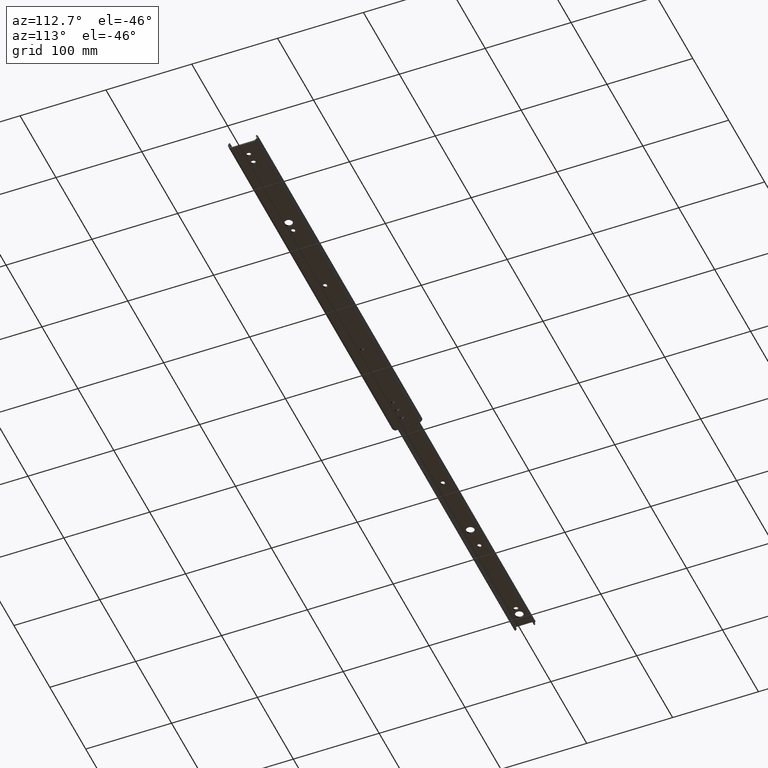
[diagram: clean part render]
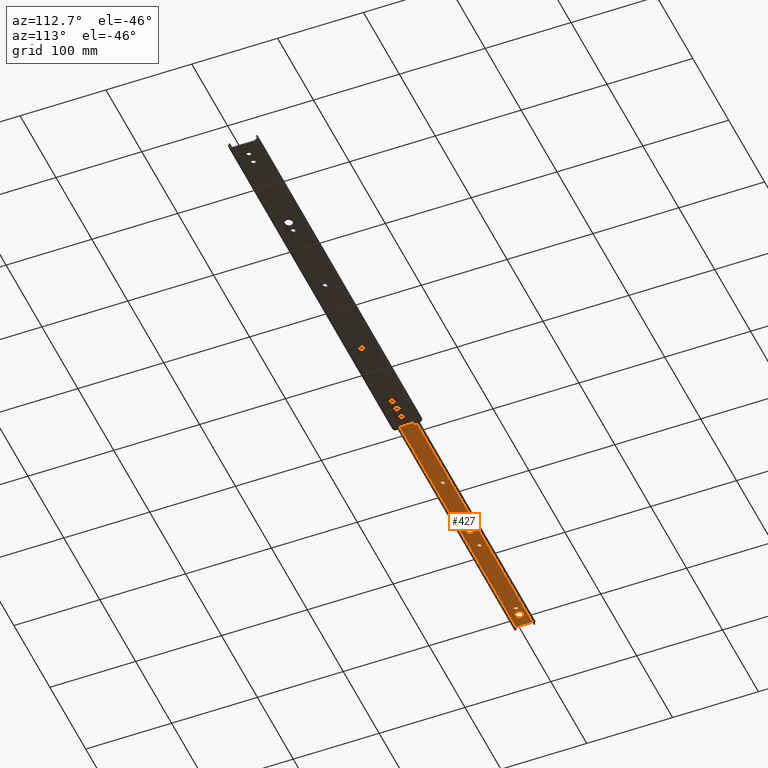
[diagram: same view with one face highlighted and labeled with its STEP entity id]
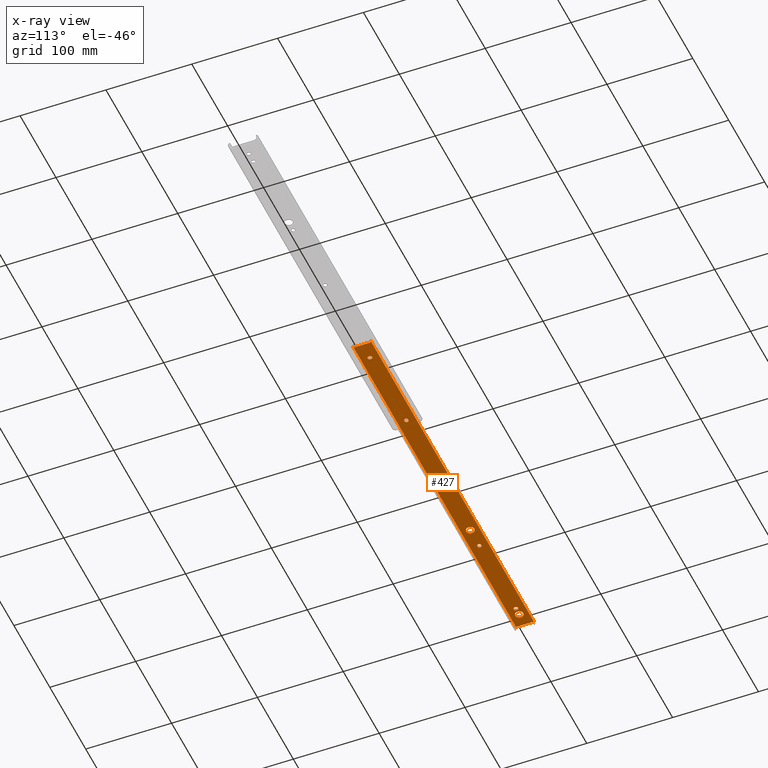
[diagram: x-ray of the same camera — body ghosted, the highlighted face saturated]
A machine part, auxiliary view. The second image highlights one B-rep face of the part: STEP entity #427.
The next image is the same camera in x-ray: the body ghosted, the highlighted face saturated — about 0% of this face is hidden behind the body in this view.
In plain terms, the highlighted planar face has unit normal (0, 0, 1).
Its self-contained STEP definition (entity closure, byte-faithful):
#2 = ORIENTED_EDGE ( 'NONE', *, *, #2224, .T. ) ;
#27 = CARTESIAN_POINT ( 'NONE',  ( 229.0000000000000000, 2.412649031546223800E-015, -1.599999999999893100 ) ) ;
#40 = ORIENTED_EDGE ( 'NONE', *, *, #491, .T. ) ;
#45 = ORIENTED_EDGE ( 'NONE', *, *, #412, .T. ) ;
#66 = CIRCLE ( 'NONE', #848, 2.249999999999974200 ) ;
#86 = DIRECTION ( 'NONE',  ( 1.000000000000000000, 0.0000000000000000000, 0.0000000000000000000 ) ) ;
#122 = VECTOR ( 'NONE', #2764, 1000.000000000000000 ) ;
#137 = DIRECTION ( 'NONE',  ( 0.0000000000000000000, 0.0000000000000000000, 1.000000000000000000 ) ) ;
#140 = CARTESIAN_POINT ( 'NONE',  ( 454.1999999999999900, 0.0000000000000000000, -1.599999999999893100 ) ) ;
#143 = CARTESIAN_POINT ( 'NONE',  ( 329.7999999999999500, -2.250000000000045700, -1.599999999999894800 ) ) ;
#168 = VERTEX_POINT ( 'NONE', #499 ) ;
#181 = EDGE_CURVE ( 'NONE', #168, #3920, #3367, .T. ) ;
#255 = EDGE_CURVE ( 'NONE', #3732, #3101, #2323, .T. ) ;
#258 = VERTEX_POINT ( 'NONE', #438 ) ;
#269 = CARTESIAN_POINT ( 'NONE',  ( 454.1999999999999900, 9.799999999999993600, -1.599999999999893100 ) ) ;
#280 = CARTESIAN_POINT ( 'NONE',  ( 147.6500000000000100, 5.817072295949932400E-016, -1.599999999999893100 ) ) ;
#283 = CIRCLE ( 'NONE', #1130, 2.250000000000001800 ) ;
#295 = CARTESIAN_POINT ( 'NONE',  ( 231.2500000000000000, 2.412649031546223800E-015, -1.599999999999893100 ) ) ;
#304 = ORIENTED_EDGE ( 'NONE', *, *, #3147, .F. ) ;
#309 = EDGE_CURVE ( 'NONE', #2051, #1572, #512, .T. ) ;
#321 = LINE ( 'NONE', #1244, #2052 ) ;
#322 = ORIENTED_EDGE ( 'NONE', *, *, #2889, .T. ) ;
#333 = CIRCLE ( 'NONE', #3247, 2.250000000000001800 ) ;
#355 = DIRECTION ( 'NONE',  ( 1.000000000000000000, 0.0000000000000000000, 0.0000000000000000000 ) ) ;
#364 = DIRECTION ( 'NONE',  ( 0.0000000000000000000, 0.0000000000000000000, 1.000000000000000000 ) ) ;
#383 = CARTESIAN_POINT ( 'NONE',  ( 228.1999999999999900, 2.265691415648536800E-015, -1.599999999999893100 ) ) ;
#387 = CARTESIAN_POINT ( 'NONE',  ( 228.1999999999999900, -2.250000000000030600, -1.599999999999894800 ) ) ;
#391 = CARTESIAN_POINT ( 'NONE',  ( 27.65000000000000200, -0.3999999999999999700, -1.599999999999894800 ) ) ;
#393 = CARTESIAN_POINT ( 'NONE',  ( 454.1999999999999900, 0.0000000000000000000, -1.599999999999893100 ) ) ;
#397 = DIRECTION ( 'NONE',  ( 0.0000000000000000000, 1.000000000000000000, 0.0000000000000000000 ) ) ;
#403 = CARTESIAN_POINT ( 'NONE',  ( 454.1999999999999900, 2.249999999999993800, -1.599999999999893100 ) ) ;
#408 = CARTESIAN_POINT ( 'NONE',  ( 452.6000000000000200, 8.199999999999999300, -1.599999999999893100 ) ) ;
#412 = EDGE_CURVE ( 'NONE', #3101, #1577, #958, .T. ) ;
#427 = ADVANCED_FACE ( 'NONE', ( #1822, #865, #4151, #1718, #3316, #3416, #2476, #1606 ), #461, .F. ) ;
#438 = CARTESIAN_POINT ( 'NONE',  ( 434.0499999999999500, 0.4000000000000183400, -1.599999999999894800 ) ) ;
#446 = CIRCLE ( 'NONE', #1529, 4.750000000000004400 ) ;
#461 = PLANE ( 'NONE',  #605 ) ;
#462 = AXIS2_PLACEMENT_3D ( 'NONE', #3819, #2170, #1817 ) ;
#468 = VERTEX_POINT ( 'NONE', #2923 ) ;
#491 = EDGE_CURVE ( 'NONE', #714, #2136, #2378, .T. ) ;
#499 = CARTESIAN_POINT ( 'NONE',  ( 20.65000000000000200, 0.0000000000000000000, -1.599999999999893100 ) ) ;
#512 = CIRCLE ( 'NONE', #2625, 4.750000000000004400 ) ;
#520 = CARTESIAN_POINT ( 'NONE',  ( 332.8500000000000200, 4.625374685507152800E-014, -1.599999999999893100 ) ) ;
#528 = DIRECTION ( 'NONE',  ( 1.000000000000000000, 0.0000000000000000000, -0.0000000000000000000 ) ) ;
#543 = EDGE_CURVE ( 'NONE', #2136, #1265, #1870, .T. ) ;
#560 = VECTOR ( 'NONE', #2695, 1000.000000000000000 ) ;
#565 = VERTEX_POINT ( 'NONE', #1048 ) ;
#605 = AXIS2_PLACEMENT_3D ( 'NONE', #393, #2964, #3358 ) ;
#611 = VECTOR ( 'NONE', #3321, 1000.000000000000000 ) ;
#632 = DIRECTION ( 'NONE',  ( 1.000000000000000000, 0.0000000000000000000, 0.0000000000000000000 ) ) ;
#706 = CARTESIAN_POINT ( 'NONE',  ( 11.15000000000000000, 5.817072295949927400E-016, -1.599999999999893100 ) ) ;
#714 = VERTEX_POINT ( 'NONE', #2357 ) ;
#734 = ORIENTED_EDGE ( 'NONE', *, *, #2213, .F. ) ;
#740 = ORIENTED_EDGE ( 'NONE', *, *, #3409, .T. ) ;
#743 = ORIENTED_EDGE ( 'NONE', *, *, #3592, .T. ) ;
#771 = DIRECTION ( 'NONE',  ( 0.0000000000000000000, -1.000000000000000000, 0.0000000000000000000 ) ) ;
#780 = DIRECTION ( 'NONE',  ( -1.000000000000000000, -0.0000000000000000000, 0.0000000000000000000 ) ) ;
#796 = CARTESIAN_POINT ( 'NONE',  ( 126.5999999999999900, 2.249999999999993800, -1.599999999999894800 ) ) ;
#812 = CARTESIAN_POINT ( 'NONE',  ( 330.6000000000000800, 4.625374685507152800E-014, -1.599999999999893100 ) ) ;
#813 = ORIENTED_EDGE ( 'NONE', *, *, #1929, .T. ) ;
#848 = AXIS2_PLACEMENT_3D ( 'NONE', #1131, #3370, #1453 ) ;
#854 = LINE ( 'NONE', #910, #3403 ) ;
#857 = DIRECTION ( 'NONE',  ( 0.0000000000000000000, 0.0000000000000000000, 1.000000000000000000 ) ) ;
#865 = FACE_BOUND ( 'NONE', #973, .T. ) ;
#884 = DIRECTION ( 'NONE',  ( -1.000000000000000000, 0.0000000000000000000, 0.0000000000000000000 ) ) ;
#894 = EDGE_CURVE ( 'NONE', #2944, #2504, #3949, .T. ) ;
#910 = CARTESIAN_POINT ( 'NONE',  ( 429.5500000000000100, 0.0000000000000000000, -1.599999999999893100 ) ) ;
#935 = CARTESIAN_POINT ( 'NONE',  ( 434.0499999999999500, 0.0000000000000000000, -1.599999999999893100 ) ) ;
#937 = VECTOR ( 'NONE', #780, 1000.000000000000000 ) ;
#946 = VECTOR ( 'NONE', #528, 1000.000000000000000 ) ;
#958 = CIRCLE ( 'NONE', #3888, 2.250000000000001800 ) ;
#964 = ORIENTED_EDGE ( 'NONE', *, *, #181, .T. ) ;
#972 = DIRECTION ( 'NONE',  ( 0.0000000000000000000, 0.0000000000000000000, 1.000000000000000000 ) ) ;
#973 = EDGE_LOOP ( 'NONE', ( #3300, #45, #2686, #322, #2388 ) ) ;
#977 = VERTEX_POINT ( 'NONE', #1063 ) ;
#983 = LINE ( 'NONE', #1796, #122 ) ;
#992 = VECTOR ( 'NONE', #3597, 1000.000000000000000 ) ;
#1048 = CARTESIAN_POINT ( 'NONE',  ( 429.5500000000000100, -0.4000000000000183400, -1.599999999999893100 ) ) ;
#1063 = CARTESIAN_POINT ( 'NONE',  ( 454.1999999999999900, 10.42509259386300400, -1.599999999999893100 ) ) ;
#1069 = CARTESIAN_POINT ( 'NONE',  ( 434.0499999999999500, -0.4000000000000183400, -1.599999999999894800 ) ) ;
#1070 = ORIENTED_EDGE ( 'NONE', *, *, #1438, .T. ) ;
#1089 = CARTESIAN_POINT ( 'NONE',  ( 454.1999999999999900, 2.249999999999953800, -1.599999999999893100 ) ) ;
#1099 = DIRECTION ( 'NONE',  ( 1.000000000000000000, 0.0000000000000000000, 0.0000000000000000000 ) ) ;
#1104 = VECTOR ( 'NONE', #2015, 1000.000000000000000 ) ;
#1113 = VERTEX_POINT ( 'NONE', #3833 ) ;
#1115 = CARTESIAN_POINT ( 'NONE',  ( 454.1999999999999900, 10.42509259386300400, -1.599999999999893100 ) ) ;
#1119 = AXIS2_PLACEMENT_3D ( 'NONE', #3001, #3594, #2761 ) ;
#1130 = AXIS2_PLACEMENT_3D ( 'NONE', #1700, #4059, #4028 ) ;
#1131 = CARTESIAN_POINT ( 'NONE',  ( 330.6000000000000800, 4.625374685507152800E-014, -1.599999999999893100 ) ) ;
#1192 = EDGE_CURVE ( 'NONE', #3648, #2208, #283, .T. ) ;
#1203 = EDGE_CURVE ( 'NONE', #1772, #1301, #3501, .T. ) ;
#1244 = CARTESIAN_POINT ( 'NONE',  ( 454.1999999999999900, -9.800000000000007800, -1.599999999999893100 ) ) ;
#1255 = AXIS2_PLACEMENT_3D ( 'NONE', #2777, #857, #3097 ) ;
#1265 = VERTEX_POINT ( 'NONE', #1486 ) ;
#1270 = CARTESIAN_POINT ( 'NONE',  ( 454.1999999999999900, -9.800000000000007800, -1.599999999999894800 ) ) ;
#1275 = VECTOR ( 'NONE', #3667, 1000.000000000000000 ) ;
#1301 = VERTEX_POINT ( 'NONE', #520 ) ;
#1316 = AXIS2_PLACEMENT_3D ( 'NONE', #2074, #137, #2397 ) ;
#1327 = VECTOR ( 'NONE', #3947, 1000.000000000000000 ) ;
#1385 = VECTOR ( 'NONE', #3972, 1000.000000000000000 ) ;
#1390 = CARTESIAN_POINT ( 'NONE',  ( 127.4000000000000200, 2.249999999999993800, -1.599999999999894800 ) ) ;
#1403 = AXIS2_PLACEMENT_3D ( 'NONE', #1583, #3812, #1920 ) ;
#1438 = EDGE_CURVE ( 'NONE', #3083, #258, #3651, .T. ) ;
#1453 = DIRECTION ( 'NONE',  ( 1.000000000000000000, 0.0000000000000000000, 0.0000000000000000000 ) ) ;
#1486 = CARTESIAN_POINT ( 'NONE',  ( 452.6000000000000200, -8.200000000000001100, -1.599999999999893100 ) ) ;
#1495 = CIRCLE ( 'NONE', #1512, 4.750000000000000900 ) ;
#1496 = DIRECTION ( 'NONE',  ( 0.0000000000000000000, 0.0000000000000000000, 1.000000000000000000 ) ) ;
#1499 = ORIENTED_EDGE ( 'NONE', *, *, #2758, .T. ) ;
#1501 = DIRECTION ( 'NONE',  ( 0.0000000000000000000, 0.0000000000000000000, 1.000000000000000000 ) ) ;
#1507 = CARTESIAN_POINT ( 'NONE',  ( 330.6000000000000800, 2.249999999999953800, -1.599999999999894800 ) ) ;
#1512 = AXIS2_PLACEMENT_3D ( 'NONE', #3413, #1501, #3723 ) ;
#1529 = AXIS2_PLACEMENT_3D ( 'NONE', #1988, #2328, #3581 ) ;
#1552 = AXIS2_PLACEMENT_3D ( 'NONE', #812, #2514, #86 ) ;
#1567 = EDGE_LOOP ( 'NONE', ( #1875, #3331, #2554, #2651, #813 ) ) ;
#1572 = VERTEX_POINT ( 'NONE', #2549 ) ;
#1577 = VERTEX_POINT ( 'NONE', #387 ) ;
#1583 = CARTESIAN_POINT ( 'NONE',  ( 431.7999999999999500, 0.3999999999999774300, -1.599999999999893100 ) ) ;
#1587 = EDGE_CURVE ( 'NONE', #4008, #3130, #3843, .T. ) ;
#1593 = CARTESIAN_POINT ( 'NONE',  ( 0.0000000000000000000, -10.42509259386300400, -1.599999999999893100 ) ) ;
#1606 = FACE_OUTER_BOUND ( 'NONE', #2205, .T. ) ;
#1630 = CARTESIAN_POINT ( 'NONE',  ( 454.1999999999999900, -10.42509259386300400, -1.599999999999893100 ) ) ;
#1677 = DIRECTION ( 'NONE',  ( 0.0000000000000000000, 0.0000000000000000000, 1.000000000000000000 ) ) ;
#1696 = ORIENTED_EDGE ( 'NONE', *, *, #1203, .T. ) ;
#1700 = CARTESIAN_POINT ( 'NONE',  ( 25.39999999999999900, -0.3999999999999999700, -1.599999999999893100 ) ) ;
#1715 = EDGE_CURVE ( 'NONE', #2208, #4135, #2716, .T. ) ;
#1718 = FACE_BOUND ( 'NONE', #2646, .T. ) ;
#1720 = CARTESIAN_POINT ( 'NONE',  ( 454.1999999999999900, 2.249999999999968900, -1.599999999999893100 ) ) ;
#1725 = CARTESIAN_POINT ( 'NONE',  ( 454.1999999999999900, -10.42509259386300400, -1.599999999999893100 ) ) ;
#1728 = ORIENTED_EDGE ( 'NONE', *, *, #309, .T. ) ;
#1735 = CARTESIAN_POINT ( 'NONE',  ( 452.6000000000000200, 0.0000000000000000000, -1.599999999999893100 ) ) ;
#1737 = CARTESIAN_POINT ( 'NONE',  ( 228.1999999999999900, 2.249999999999968900, -1.599999999999894800 ) ) ;
#1751 = CARTESIAN_POINT ( 'NONE',  ( 0.0000000000000000000, 0.0000000000000000000, -1.599999999999893100 ) ) ;
#1758 = VECTOR ( 'NONE', #3515, 1000.000000000000000 ) ;
#1766 = CARTESIAN_POINT ( 'NONE',  ( 454.1999999999999900, -2.250000000000005800, -1.599999999999893100 ) ) ;
#1772 = VERTEX_POINT ( 'NONE', #1871 ) ;
#1775 = ORIENTED_EDGE ( 'NONE', *, *, #3748, .T. ) ;
#1796 = CARTESIAN_POINT ( 'NONE',  ( 454.1999999999999900, -2.250000000000045700, -1.599999999999893100 ) ) ;
#1804 = VERTEX_POINT ( 'NONE', #3418 ) ;
#1805 = CIRCLE ( 'NONE', #1893, 2.250000000000001800 ) ;
#1817 = DIRECTION ( 'NONE',  ( 1.000000000000000000, 0.0000000000000000000, 0.0000000000000000000 ) ) ;
#1822 = FACE_BOUND ( 'NONE', #2406, .T. ) ;
#1838 = CIRCLE ( 'NONE', #2193, 2.249999999999974200 ) ;
#1843 = CARTESIAN_POINT ( 'NONE',  ( 329.7999999999999500, 2.249999999999953800, -1.599999999999894800 ) ) ;
#1870 = LINE ( 'NONE', #2352, #2722 ) ;
#1871 = CARTESIAN_POINT ( 'NONE',  ( 330.6000000000000200, -2.250000000000045700, -1.599999999999893100 ) ) ;
#1875 = ORIENTED_EDGE ( 'NONE', *, *, #1587, .T. ) ;
#1893 = AXIS2_PLACEMENT_3D ( 'NONE', #2617, #1496, #3718 ) ;
#1918 = EDGE_CURVE ( 'NONE', #3433, #714, #2863, .T. ) ;
#1920 = DIRECTION ( 'NONE',  ( 1.000000000000000000, 0.0000000000000000000, 0.0000000000000000000 ) ) ;
#1929 = EDGE_CURVE ( 'NONE', #3375, #4008, #2658, .T. ) ;
#1930 = ORIENTED_EDGE ( 'NONE', *, *, #3118, .T. ) ;
#1936 = CARTESIAN_POINT ( 'NONE',  ( 0.0000000000000000000, 10.42509259386300400, -1.599999999999893100 ) ) ;
#1970 = EDGE_CURVE ( 'NONE', #2107, #565, #854, .T. ) ;
#1976 = VERTEX_POINT ( 'NONE', #1593 ) ;
#1988 = CARTESIAN_POINT ( 'NONE',  ( 152.4000000000000100, 0.0000000000000000000, -1.599999999999893100 ) ) ;
#2007 = CARTESIAN_POINT ( 'NONE',  ( 27.65000000000000200, 0.3999999999999960800, -1.599999999999894800 ) ) ;
#2015 = DIRECTION ( 'NONE',  ( 0.0000000000000000000, 1.000000000000000000, 0.0000000000000000000 ) ) ;
#2021 = VERTEX_POINT ( 'NONE', #1843 ) ;
#2040 = EDGE_LOOP ( 'NONE', ( #2368, #1728 ) ) ;
#2046 = DIRECTION ( 'NONE',  ( 0.0000000000000000000, 0.0000000000000000000, 1.000000000000000000 ) ) ;
#2049 = VECTOR ( 'NONE', #2095, 1000.000000000000000 ) ;
#2051 = VERTEX_POINT ( 'NONE', #280 ) ;
#2052 = VECTOR ( 'NONE', #2229, 1000.000000000000000 ) ;
#2054 = EDGE_CURVE ( 'NONE', #1572, #2051, #446, .T. ) ;
#2074 = CARTESIAN_POINT ( 'NONE',  ( 25.39999999999999900, 0.3999999999999960800, -1.599999999999893100 ) ) ;
#2077 = DIRECTION ( 'NONE',  ( 0.0000000000000000000, 1.000000000000000000, 0.0000000000000000000 ) ) ;
#2095 = DIRECTION ( 'NONE',  ( 1.000000000000000000, 0.0000000000000000000, -0.0000000000000000000 ) ) ;
#2107 = VERTEX_POINT ( 'NONE', #2688 ) ;
#2117 = EDGE_CURVE ( 'NONE', #468, #3375, #333, .T. ) ;
#2135 = EDGE_CURVE ( 'NONE', #1265, #3132, #3448, .T. ) ;
#2136 = VERTEX_POINT ( 'NONE', #408 ) ;
#2144 = VERTEX_POINT ( 'NONE', #1507 ) ;
#2145 = VERTEX_POINT ( 'NONE', #2163 ) ;
#2155 = LINE ( 'NONE', #1115, #1275 ) ;
#2163 = CARTESIAN_POINT ( 'NONE',  ( 23.14999999999999900, 0.3999999999999951400, -1.599999999999894800 ) ) ;
#2170 = DIRECTION ( 'NONE',  ( 0.0000000000000000000, 0.0000000000000000000, 1.000000000000000000 ) ) ;
#2193 = AXIS2_PLACEMENT_3D ( 'NONE', #3583, #1677, #3896 ) ;
#2194 = CARTESIAN_POINT ( 'NONE',  ( 27.65000000000000900, 0.0000000000000000000, -1.599999999999893100 ) ) ;
#2205 = EDGE_LOOP ( 'NONE', ( #40, #3166, #3810, #2729, #4004, #740, #1930, #304, #734, #3719 ) ) ;
#2208 = VERTEX_POINT ( 'NONE', #391 ) ;
#2213 = EDGE_CURVE ( 'NONE', #3433, #977, #3352, .T. ) ;
#2222 = ORIENTED_EDGE ( 'NONE', *, *, #1192, .T. ) ;
#2224 = EDGE_CURVE ( 'NONE', #2145, #3648, #3987, .T. ) ;
#2229 = DIRECTION ( 'NONE',  ( 1.000000000000000000, 0.0000000000000000000, 0.0000000000000000000 ) ) ;
#2263 = CARTESIAN_POINT ( 'NONE',  ( 452.6000000000000200, 0.0000000000000000000, -1.599999999999893100 ) ) ;
#2282 = EDGE_CURVE ( 'NONE', #1577, #1804, #2655, .T. ) ;
#2295 = CIRCLE ( 'NONE', #1403, 2.249999999999974200 ) ;
#2297 = EDGE_CURVE ( 'NONE', #3130, #1113, #1805, .T. ) ;
#2302 = DIRECTION ( 'NONE',  ( 0.0000000000000000000, 0.0000000000000000000, 1.000000000000000000 ) ) ;
#2317 = DIRECTION ( 'NONE',  ( 1.000000000000000000, 0.0000000000000000000, 0.0000000000000000000 ) ) ;
#2323 = LINE ( 'NONE', #1720, #611 ) ;
#2328 = DIRECTION ( 'NONE',  ( 0.0000000000000000000, 0.0000000000000000000, 1.000000000000000000 ) ) ;
#2347 = CARTESIAN_POINT ( 'NONE',  ( 23.15000000000000600, 0.0000000000000000000, -1.599999999999893100 ) ) ;
#2352 = CARTESIAN_POINT ( 'NONE',  ( 452.6000000000000200, 0.0000000000000000000, -1.599999999999893100 ) ) ;
#2357 = CARTESIAN_POINT ( 'NONE',  ( 452.6000000000000200, 9.799999999999993600, -1.599999999999894800 ) ) ;
#2368 = ORIENTED_EDGE ( 'NONE', *, *, #2054, .T. ) ;
#2378 = LINE ( 'NONE', #2263, #560 ) ;
#2388 = ORIENTED_EDGE ( 'NONE', *, *, #3878, .T. ) ;
#2397 = DIRECTION ( 'NONE',  ( 1.000000000000000000, 0.0000000000000000000, 0.0000000000000000000 ) ) ;
#2406 = EDGE_LOOP ( 'NONE', ( #3421, #2786, #3525, #1696, #2682 ) ) ;
#2410 = VECTOR ( 'NONE', #2077, 1000.000000000000000 ) ;
#2476 = FACE_BOUND ( 'NONE', #4132, .T. ) ;
#2488 = AXIS2_PLACEMENT_3D ( 'NONE', #27, #2302, #355 ) ;
#2504 = VERTEX_POINT ( 'NONE', #1270 ) ;
#2514 = DIRECTION ( 'NONE',  ( 0.0000000000000000000, 0.0000000000000000000, 1.000000000000000000 ) ) ;
#2546 = EDGE_LOOP ( 'NONE', ( #2578, #3334, #2, #2222 ) ) ;
#2549 = CARTESIAN_POINT ( 'NONE',  ( 157.1500000000000100, 0.0000000000000000000, -1.599999999999893100 ) ) ;
#2554 = ORIENTED_EDGE ( 'NONE', *, *, #3148, .T. ) ;
#2578 = ORIENTED_EDGE ( 'NONE', *, *, #1715, .T. ) ;
#2617 = CARTESIAN_POINT ( 'NONE',  ( 126.5999999999999900, 2.476904576198428100E-015, -1.599999999999893100 ) ) ;
#2625 = AXIS2_PLACEMENT_3D ( 'NONE', #3364, #2046, #2317 ) ;
#2646 = EDGE_LOOP ( 'NONE', ( #1070, #1775, #3431, #743 ) ) ;
#2651 = ORIENTED_EDGE ( 'NONE', *, *, #2117, .T. ) ;
#2655 = LINE ( 'NONE', #3395, #946 ) ;
#2658 = CIRCLE ( 'NONE', #462, 2.250000000000001800 ) ;
#2682 = ORIENTED_EDGE ( 'NONE', *, *, #3497, .T. ) ;
#2686 = ORIENTED_EDGE ( 'NONE', *, *, #2282, .T. ) ;
#2688 = CARTESIAN_POINT ( 'NONE',  ( 429.5500000000000100, 0.4000000000000186200, -1.599999999999894800 ) ) ;
#2695 = DIRECTION ( 'NONE',  ( 0.0000000000000000000, -1.000000000000000000, 0.0000000000000000000 ) ) ;
#2708 = CARTESIAN_POINT ( 'NONE',  ( 127.4000000000000200, 2.574876320130218100E-015, -1.599999999999893100 ) ) ;
#2716 = LINE ( 'NONE', #2194, #1758 ) ;
#2722 = VECTOR ( 'NONE', #771, 1000.000000000000000 ) ;
#2729 = ORIENTED_EDGE ( 'NONE', *, *, #2854, .T. ) ;
#2758 = EDGE_CURVE ( 'NONE', #3920, #168, #1495, .T. ) ;
#2761 = DIRECTION ( 'NONE',  ( 1.000000000000000000, 0.0000000000000000000, 0.0000000000000000000 ) ) ;
#2764 = DIRECTION ( 'NONE',  ( 1.000000000000000000, 0.0000000000000000000, -0.0000000000000000000 ) ) ;
#2777 = CARTESIAN_POINT ( 'NONE',  ( 431.7999999999999500, -0.4000000000000186200, -1.599999999999893100 ) ) ;
#2786 = ORIENTED_EDGE ( 'NONE', *, *, #4118, .T. ) ;
#2848 = LINE ( 'NONE', #1725, #1327 ) ;
#2854 = EDGE_CURVE ( 'NONE', #3132, #2504, #321, .T. ) ;
#2863 = LINE ( 'NONE', #269, #3495 ) ;
#2889 = EDGE_CURVE ( 'NONE', #1804, #3766, #3532, .T. ) ;
#2898 = LINE ( 'NONE', #1766, #2049 ) ;
#2904 = CARTESIAN_POINT ( 'NONE',  ( 229.0000000000000000, 2.412649031546223800E-015, -1.599999999999893100 ) ) ;
#2923 = CARTESIAN_POINT ( 'NONE',  ( 127.4000000000000600, -2.250000000000005800, -1.599999999999893100 ) ) ;
#2933 = VERTEX_POINT ( 'NONE', #1936 ) ;
#2944 = VERTEX_POINT ( 'NONE', #1630 ) ;
#2964 = DIRECTION ( 'NONE',  ( 0.0000000000000000000, 0.0000000000000000000, 1.000000000000000000 ) ) ;
#3001 = CARTESIAN_POINT ( 'NONE',  ( 15.90000000000000000, 0.0000000000000000000, -1.599999999999893100 ) ) ;
#3004 = LINE ( 'NONE', #1751, #1385 ) ;
#3018 = VECTOR ( 'NONE', #4092, 1000.000000000000000 ) ;
#3023 = VECTOR ( 'NONE', #397, 1000.000000000000000 ) ;
#3028 = DIRECTION ( 'NONE',  ( 0.0000000000000000000, 0.0000000000000000000, 1.000000000000000000 ) ) ;
#3058 = VECTOR ( 'NONE', #3353, 1000.000000000000000 ) ;
#3083 = VERTEX_POINT ( 'NONE', #1069 ) ;
#3097 = DIRECTION ( 'NONE',  ( 1.000000000000000000, 0.0000000000000000000, 0.0000000000000000000 ) ) ;
#3101 = VERTEX_POINT ( 'NONE', #1737 ) ;
#3118 = EDGE_CURVE ( 'NONE', #1976, #2933, #3004, .T. ) ;
#3125 = VERTEX_POINT ( 'NONE', #143 ) ;
#3130 = VERTEX_POINT ( 'NONE', #796 ) ;
#3132 = VERTEX_POINT ( 'NONE', #3342 ) ;
#3145 = CARTESIAN_POINT ( 'NONE',  ( 129.6500000000000100, 2.574876320130218100E-015, -1.599999999999893100 ) ) ;
#3147 = EDGE_CURVE ( 'NONE', #977, #2933, #2155, .T. ) ;
#3148 = EDGE_CURVE ( 'NONE', #1113, #468, #2898, .T. ) ;
#3166 = ORIENTED_EDGE ( 'NONE', *, *, #543, .T. ) ;
#3173 = CARTESIAN_POINT ( 'NONE',  ( 229.0000000000000000, 2.249999999999968900, -1.599999999999894800 ) ) ;
#3217 = DIRECTION ( 'NONE',  ( 1.000000000000000000, 0.0000000000000000000, 0.0000000000000000000 ) ) ;
#3227 = EDGE_CURVE ( 'NONE', #3125, #1772, #983, .T. ) ;
#3247 = AXIS2_PLACEMENT_3D ( 'NONE', #2708, #3028, #1099 ) ;
#3300 = ORIENTED_EDGE ( 'NONE', *, *, #255, .T. ) ;
#3316 = FACE_BOUND ( 'NONE', #2546, .T. ) ;
#3321 = DIRECTION ( 'NONE',  ( -1.000000000000000000, -0.0000000000000000000, 0.0000000000000000000 ) ) ;
#3331 = ORIENTED_EDGE ( 'NONE', *, *, #2297, .T. ) ;
#3334 = ORIENTED_EDGE ( 'NONE', *, *, #4045, .T. ) ;
#3342 = CARTESIAN_POINT ( 'NONE',  ( 452.6000000000000200, -9.800000000000007800, -1.599999999999894800 ) ) ;
#3352 = LINE ( 'NONE', #140, #2410 ) ;
#3353 = DIRECTION ( 'NONE',  ( 0.0000000000000000000, -1.000000000000000000, 0.0000000000000000000 ) ) ;
#3358 = DIRECTION ( 'NONE',  ( 1.000000000000000000, 0.0000000000000000000, -0.0000000000000000000 ) ) ;
#3364 = CARTESIAN_POINT ( 'NONE',  ( 152.4000000000000100, 0.0000000000000000000, -1.599999999999893100 ) ) ;
#3367 = CIRCLE ( 'NONE', #1119, 4.750000000000000900 ) ;
#3370 = DIRECTION ( 'NONE',  ( 0.0000000000000000000, 0.0000000000000000000, 1.000000000000000000 ) ) ;
#3375 = VERTEX_POINT ( 'NONE', #3145 ) ;
#3395 = CARTESIAN_POINT ( 'NONE',  ( 454.1999999999999900, -2.250000000000030600, -1.599999999999893100 ) ) ;
#3403 = VECTOR ( 'NONE', #3454, 1000.000000000000000 ) ;
#3409 = EDGE_CURVE ( 'NONE', #2944, #1976, #2848, .T. ) ;
#3413 = CARTESIAN_POINT ( 'NONE',  ( 15.90000000000000000, 0.0000000000000000000, -1.599999999999893100 ) ) ;
#3416 = FACE_BOUND ( 'NONE', #2040, .T. ) ;
#3418 = CARTESIAN_POINT ( 'NONE',  ( 229.0000000000000000, -2.250000000000030600, -1.599999999999893100 ) ) ;
#3421 = ORIENTED_EDGE ( 'NONE', *, *, #3443, .T. ) ;
#3431 = ORIENTED_EDGE ( 'NONE', *, *, #1970, .T. ) ;
#3433 = VERTEX_POINT ( 'NONE', #3957 ) ;
#3439 = AXIS2_PLACEMENT_3D ( 'NONE', #2904, #972, #3217 ) ;
#3443 = EDGE_CURVE ( 'NONE', #2144, #2021, #3479, .T. ) ;
#3448 = LINE ( 'NONE', #1735, #992 ) ;
#3454 = DIRECTION ( 'NONE',  ( 0.0000000000000000000, -1.000000000000000000, 0.0000000000000000000 ) ) ;
#3479 = LINE ( 'NONE', #1089, #937 ) ;
#3495 = VECTOR ( 'NONE', #884, 1000.000000000000000 ) ;
#3497 = EDGE_CURVE ( 'NONE', #1301, #2144, #66, .T. ) ;
#3501 = CIRCLE ( 'NONE', #1552, 2.249999999999974200 ) ;
#3515 = DIRECTION ( 'NONE',  ( 0.0000000000000000000, 1.000000000000000000, 0.0000000000000000000 ) ) ;
#3525 = ORIENTED_EDGE ( 'NONE', *, *, #3227, .T. ) ;
#3532 = CIRCLE ( 'NONE', #3439, 2.250000000000001800 ) ;
#3574 = CIRCLE ( 'NONE', #2488, 2.250000000000001800 ) ;
#3581 = DIRECTION ( 'NONE',  ( 1.000000000000000000, 0.0000000000000000000, 0.0000000000000000000 ) ) ;
#3583 = CARTESIAN_POINT ( 'NONE',  ( 329.7999999999999500, 9.460167886830102500E-027, -1.599999999999893100 ) ) ;
#3592 = EDGE_CURVE ( 'NONE', #565, #3083, #3926, .T. ) ;
#3594 = DIRECTION ( 'NONE',  ( 0.0000000000000000000, 0.0000000000000000000, 1.000000000000000000 ) ) ;
#3597 = DIRECTION ( 'NONE',  ( 0.0000000000000000000, -1.000000000000000000, 0.0000000000000000000 ) ) ;
#3648 = VERTEX_POINT ( 'NONE', #4055 ) ;
#3651 = LINE ( 'NONE', #935, #1104 ) ;
#3667 = DIRECTION ( 'NONE',  ( -1.000000000000000000, -0.0000000000000000000, -0.0000000000000000000 ) ) ;
#3718 = DIRECTION ( 'NONE',  ( 1.000000000000000000, 0.0000000000000000000, 0.0000000000000000000 ) ) ;
#3719 = ORIENTED_EDGE ( 'NONE', *, *, #1918, .T. ) ;
#3722 = CIRCLE ( 'NONE', #1316, 2.250000000000001800 ) ;
#3723 = DIRECTION ( 'NONE',  ( 1.000000000000000000, 0.0000000000000000000, 0.0000000000000000000 ) ) ;
#3732 = VERTEX_POINT ( 'NONE', #3173 ) ;
#3748 = EDGE_CURVE ( 'NONE', #258, #2107, #2295, .T. ) ;
#3766 = VERTEX_POINT ( 'NONE', #295 ) ;
#3792 = CARTESIAN_POINT ( 'NONE',  ( 454.1999999999999900, 0.0000000000000000000, -1.599999999999893100 ) ) ;
#3810 = ORIENTED_EDGE ( 'NONE', *, *, #2135, .T. ) ;
#3812 = DIRECTION ( 'NONE',  ( 0.0000000000000000000, 0.0000000000000000000, 1.000000000000000000 ) ) ;
#3819 = CARTESIAN_POINT ( 'NONE',  ( 127.4000000000000200, 2.574876320130218100E-015, -1.599999999999893100 ) ) ;
#3833 = CARTESIAN_POINT ( 'NONE',  ( 126.5999999999999900, -2.250000000000005800, -1.599999999999894800 ) ) ;
#3843 = LINE ( 'NONE', #403, #3018 ) ;
#3878 = EDGE_CURVE ( 'NONE', #3766, #3732, #3574, .T. ) ;
#3888 = AXIS2_PLACEMENT_3D ( 'NONE', #383, #364, #632 ) ;
#3896 = DIRECTION ( 'NONE',  ( 1.000000000000000000, 0.0000000000000000000, 0.0000000000000000000 ) ) ;
#3920 = VERTEX_POINT ( 'NONE', #706 ) ;
#3926 = CIRCLE ( 'NONE', #1255, 2.249999999999974200 ) ;
#3947 = DIRECTION ( 'NONE',  ( -1.000000000000000000, -0.0000000000000000000, -0.0000000000000000000 ) ) ;
#3949 = LINE ( 'NONE', #3792, #3023 ) ;
#3957 = CARTESIAN_POINT ( 'NONE',  ( 454.1999999999999900, 9.799999999999993600, -1.599999999999893100 ) ) ;
#3972 = DIRECTION ( 'NONE',  ( 0.0000000000000000000, 1.000000000000000000, 0.0000000000000000000 ) ) ;
#3987 = LINE ( 'NONE', #2347, #3058 ) ;
#4004 = ORIENTED_EDGE ( 'NONE', *, *, #894, .F. ) ;
#4008 = VERTEX_POINT ( 'NONE', #1390 ) ;
#4028 = DIRECTION ( 'NONE',  ( 1.000000000000000000, 0.0000000000000000000, 0.0000000000000000000 ) ) ;
#4045 = EDGE_CURVE ( 'NONE', #4135, #2145, #3722, .T. ) ;
#4055 = CARTESIAN_POINT ( 'NONE',  ( 23.15000000000000600, -0.3999999999999946900, -1.599999999999893100 ) ) ;
#4059 = DIRECTION ( 'NONE',  ( 0.0000000000000000000, 0.0000000000000000000, 1.000000000000000000 ) ) ;
#4092 = DIRECTION ( 'NONE',  ( -1.000000000000000000, -0.0000000000000000000, 0.0000000000000000000 ) ) ;
#4118 = EDGE_CURVE ( 'NONE', #2021, #3125, #1838, .T. ) ;
#4132 = EDGE_LOOP ( 'NONE', ( #964, #1499 ) ) ;
#4135 = VERTEX_POINT ( 'NONE', #2007 ) ;
#4151 = FACE_BOUND ( 'NONE', #1567, .T. ) ;